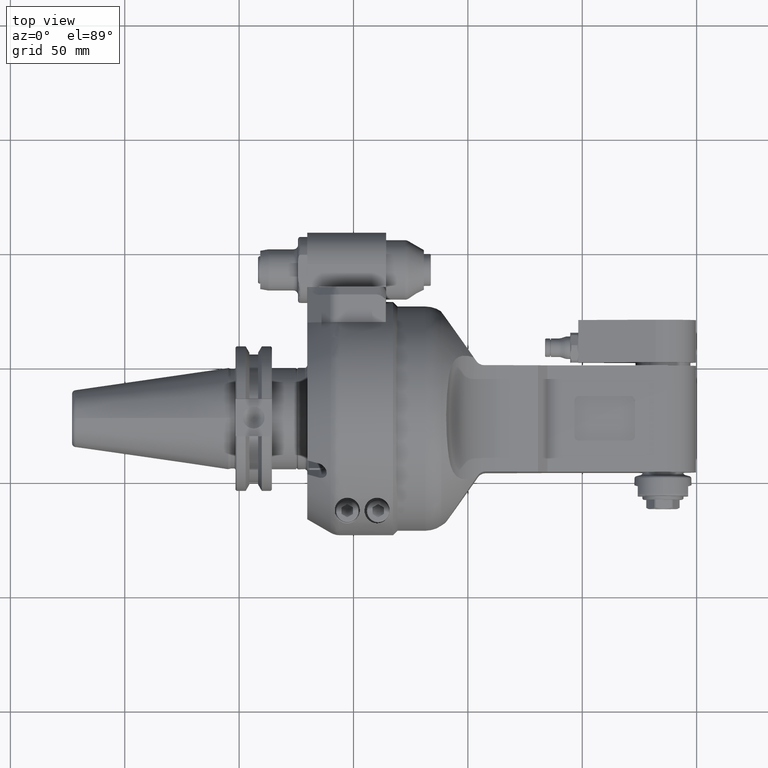
[diagram: clean part render]
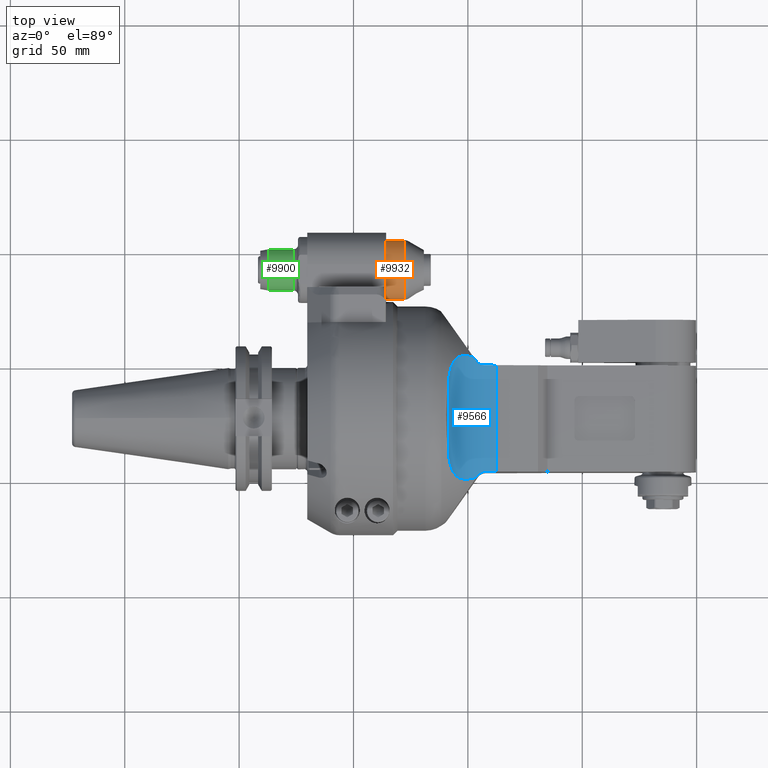
[diagram: same view with three faces highlighted in distinct colors, each labeled with its STEP entity id]
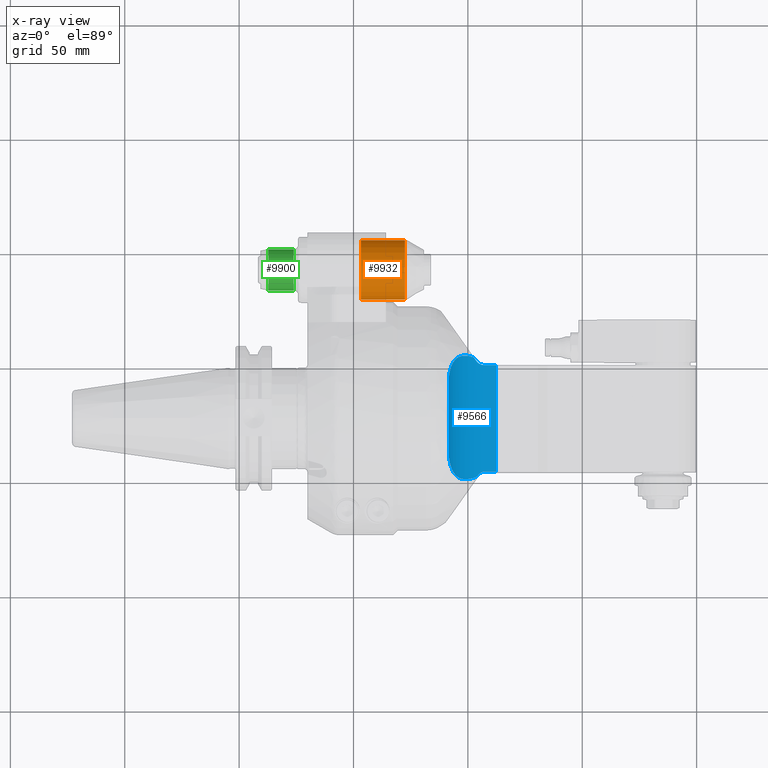
[diagram: x-ray of the same camera — body ghosted, the three highlighted faces saturated]
A machine part, top view with three faces highlighted in distinct colors.
The next image is the same camera in x-ray (body ghosted, the three faces saturated) — at least one of them is partly hidden behind the body in this view.
Their STEP definitions:

[orange] entity #9932 — the highlighted cylindrical surface (bore or boss wall) has radius 13 mm, axis along (1, 0, 0).
#501=CYLINDRICAL_SURFACE('',#10832,13.);
#945=CIRCLE('',#10831,13.);
#946=CIRCLE('',#10833,13.);
#947=CIRCLE('',#10834,13.);
#1453=FACE_OUTER_BOUND('',#2061,.T.);
#2061=EDGE_LOOP('',(#8587,#8588,#8589,#8590,#8591));
#2899=LINE('',#16931,#3709);
#3709=VECTOR('',#13167,13.);
#4670=VERTEX_POINT('',#16924);
#4671=VERTEX_POINT('',#16927);
#4672=VERTEX_POINT('',#16928);
#6011=EDGE_CURVE('',#4670,#4670,#945,.T.);
#6012=EDGE_CURVE('',#4671,#4672,#946,.T.);
#6013=EDGE_CURVE('',#4672,#4671,#947,.T.);
#6014=EDGE_CURVE('',#4672,#4670,#2899,.T.);
#8587=ORIENTED_EDGE('',*,*,#6012,.F.);
#8588=ORIENTED_EDGE('',*,*,#6013,.F.);
#8589=ORIENTED_EDGE('',*,*,#6014,.T.);
#8590=ORIENTED_EDGE('',*,*,#6011,.F.);
#8591=ORIENTED_EDGE('',*,*,#6014,.F.);
#9932=ADVANCED_FACE('',(#1453),#501,.T.);
#10831=AXIS2_PLACEMENT_3D('',#16925,#13159,#13160);
#10832=AXIS2_PLACEMENT_3D('',#16926,#13161,#13162);
#10833=AXIS2_PLACEMENT_3D('',#16929,#13163,#13164);
#10834=AXIS2_PLACEMENT_3D('',#16930,#13165,#13166);
#13159=DIRECTION('center_axis',(-1.,0.,0.));
#13160=DIRECTION('ref_axis',(0.,1.,0.));
#13161=DIRECTION('center_axis',(1.,0.,0.));
#13162=DIRECTION('ref_axis',(0.,1.,0.));
#13163=DIRECTION('center_axis',(1.,0.,0.));
#13164=DIRECTION('ref_axis',(0.,-1.,0.));
#13165=DIRECTION('center_axis',(1.,0.,0.));
#13166=DIRECTION('ref_axis',(0.,-1.,0.));
#13167=DIRECTION('',(-1.,0.,0.));
#16924=CARTESIAN_POINT('',(-28.,52.,-1.59204083889156E-15));
#16925=CARTESIAN_POINT('Origin',(-28.,65.,0.));
#16926=CARTESIAN_POINT('Origin',(-17.,65.,0.));
#16927=CARTESIAN_POINT('',(-8.803847577293,78.,0.));
#16928=CARTESIAN_POINT('',(-8.803847577293,52.,-1.59204083889156E-15));
#16929=CARTESIAN_POINT('Origin',(-8.803847577293,65.,0.));
#16930=CARTESIAN_POINT('Origin',(-8.803847577293,65.,0.));
#16931=CARTESIAN_POINT('',(-17.,52.,-1.59204083889156E-15));

[blue] entity #9566 — the highlighted cylindrical surface (partial cylindrical patch) has radius 26 mm, axis along (-0, 1, 0).
#280=ELLIPSE('',#10158,78.9687929856143,46.6795432910885);
#290=B_SPLINE_CURVE_WITH_KNOTS('',3,(#13960,#13961,#13962,#13963,#13964,
#13965,#13966,#13967),.UNSPECIFIED.,.F.,.F.,(4,2,2,4),(-1.01926799667052,
-0.956010714104506,-0.787581854621471,-0.619152995138435),.UNSPECIFIED.);
#291=B_SPLINE_CURVE_WITH_KNOTS('',3,(#13974,#13975,#13976,#13977,#13978,
#13979,#13980,#13981,#13982,#13983,#13984,#13985,#13986,#13987,#13988,#13989),
 .UNSPECIFIED.,.F.,.F.,(4,2,2,2,2,2,2,4),(-11.3679576426964,-11.1087200709386,
-10.8090962085518,-10.509472346165,-10.1518591663311,-9.79424598649715,
-9.20006866240719,-9.17254142138074),.UNSPECIFIED.);
#292=B_SPLINE_CURVE_WITH_KNOTS('',3,(#13993,#13994,#13995,#13996,#13997,
#13998,#13999,#14000,#14001,#14002,#14003,#14004,#14005,#14006,#14007,#14008),
 .UNSPECIFIED.,.F.,.F.,(4,2,2,2,2,2,2,4),(-5.66253195905696,-5.63500471786744,
-5.04082739377748,-4.68321421394354,-4.3256010341096,-4.02597717172281,
-3.72635330933601,-3.29785451749121),.UNSPECIFIED.);
#293=B_SPLINE_CURVE_WITH_KNOTS('',3,(#14012,#14013,#14014,#14015,#14016,
#14017,#14018,#14019),.UNSPECIFIED.,.F.,.F.,(4,2,2,4),(-0.634143604519555,
-0.468183361072118,-0.302223117624681,-0.23826972836719),.UNSPECIFIED.);
#392=CYLINDRICAL_SURFACE('',#10157,26.);
#642=CIRCLE('',#10152,26.);
#646=CIRCLE('',#10159,61.1215133780725);
#647=CIRCLE('',#10160,26.);
#1087=FACE_OUTER_BOUND('',#1615,.T.);
#1615=EDGE_LOOP('',(#6413,#6414,#6415,#6416,#6417,#6418,#6419,#6420,#6421,
#6422));
#2259=LINE('',#13970,#3069);
#2260=LINE('',#13991,#3070);
#3069=VECTOR('',#11173,46.5);
#3070=VECTOR('',#11176,35.24839661165);
#3871=VERTEX_POINT('',#13921);
#3873=VERTEX_POINT('',#13924);
#3885=VERTEX_POINT('',#13958);
#3886=VERTEX_POINT('',#13969);
#3887=VERTEX_POINT('',#13971);
#3888=VERTEX_POINT('',#13973);
#3889=VERTEX_POINT('',#13990);
#3890=VERTEX_POINT('',#13992);
#3891=VERTEX_POINT('',#14009);
#3892=VERTEX_POINT('',#14011);
#4922=EDGE_CURVE('',#3871,#3873,#642,.T.);
#4937=EDGE_CURVE('',#3885,#3871,#290,.T.);
#4938=EDGE_CURVE('',#3886,#3873,#2259,.T.);
#4939=EDGE_CURVE('',#3885,#3887,#280,.T.);
#4940=EDGE_CURVE('',#3887,#3888,#291,.T.);
#4941=EDGE_CURVE('',#3888,#3889,#2260,.T.);
#4942=EDGE_CURVE('',#3889,#3890,#292,.T.);
#4943=EDGE_CURVE('',#3890,#3891,#646,.T.);
#4944=EDGE_CURVE('',#3892,#3891,#293,.T.);
#4945=EDGE_CURVE('',#3886,#3892,#647,.T.);
#6413=ORIENTED_EDGE('',*,*,#4938,.T.);
#6414=ORIENTED_EDGE('',*,*,#4922,.F.);
#6415=ORIENTED_EDGE('',*,*,#4937,.F.);
#6416=ORIENTED_EDGE('',*,*,#4939,.T.);
#6417=ORIENTED_EDGE('',*,*,#4940,.T.);
#6418=ORIENTED_EDGE('',*,*,#4941,.T.);
#6419=ORIENTED_EDGE('',*,*,#4942,.T.);
#6420=ORIENTED_EDGE('',*,*,#4943,.T.);
#6421=ORIENTED_EDGE('',*,*,#4944,.F.);
#6422=ORIENTED_EDGE('',*,*,#4945,.F.);
#9566=ADVANCED_FACE('',(#1087),#392,.F.);
#10152=AXIS2_PLACEMENT_3D('',#13925,#11151,#11152);
#10157=AXIS2_PLACEMENT_3D('',#13968,#11171,#11172);
#10158=AXIS2_PLACEMENT_3D('',#13972,#11174,#11175);
#10159=AXIS2_PLACEMENT_3D('',#14010,#11177,#11178);
#10160=AXIS2_PLACEMENT_3D('',#14020,#11179,#11180);
#11151=DIRECTION('center_axis',(0.,-1.,0.));
#11152=DIRECTION('ref_axis',(-0.377730003632286,0.,-0.925915786859665));
#11171=DIRECTION('center_axis',(0.,1.,0.));
#11172=DIRECTION('ref_axis',(1.,0.,0.));
#11173=DIRECTION('',(0.,1.,0.));
#11174=DIRECTION('center_axis',(0.81918684404937,0.573526708363153,0.000171261674334055));
#11175=DIRECTION('ref_axis',(0.540125021552703,-0.771578478112781,0.336052991663303));
#11176=DIRECTION('',(-6.191174958633E-12,-1.,2.310507871532E-11));
#11177=DIRECTION('center_axis',(0.819155309113549,-0.573571773390025,1.7925061385749E-5));
#11178=DIRECTION('ref_axis',(-0.170381302522093,-0.243362506342258,-0.954853340706147));
#11179=DIRECTION('center_axis',(0.,1.,0.));
#11180=DIRECTION('ref_axis',(-0.173648177667307,0.,-0.984807753012142));
#13921=CARTESIAN_POINT('',(54.73216465251,23.,23.50722286254));
#13924=CARTESIAN_POINT('',(60.03829212761,23.,21.97603174258));
#13925=CARTESIAN_POINT('Origin',(64.55314474696,23.,47.5810333209));
#13958=CARTESIAN_POINT('',(51.45555647536,24.7056942546,25.12099811461));
#13960=CARTESIAN_POINT('Ctrl Pts',(51.4555564753612,24.7056942545999,25.1209981146124));
#13961=CARTESIAN_POINT('Ctrl Pts',(51.5753408439917,24.5346244473009,25.0511457600953));
#13962=CARTESIAN_POINT('Ctrl Pts',(51.7059494581249,24.3768949906602,24.9763026179841));
#13963=CARTESIAN_POINT('Ctrl Pts',(52.2037708472152,23.8565480079489,24.6973038563181));
#13964=CARTESIAN_POINT('Ctrl Pts',(52.6603225400344,23.5351211073212,24.4537188362212));
#13965=CARTESIAN_POINT('Ctrl Pts',(53.6643756978693,23.1067054262353,23.9643738640769));
#13966=CARTESIAN_POINT('Ctrl Pts',(54.2123281859922,23.,23.7192916415636));
#13967=CARTESIAN_POINT('Ctrl Pts',(54.73216465252,23.,23.5072228625489));
#13968=CARTESIAN_POINT('Origin',(64.55314474696,0.,47.5810333209));
#13969=CARTESIAN_POINT('',(60.03829212761,-23.5,21.97603174258));
#13970=CARTESIAN_POINT('',(60.03829212761,-23.5,21.97603174258));
#13971=CARTESIAN_POINT('',(50.32663557925,26.31796038215,25.81853261668));
#13972=CARTESIAN_POINT('Origin',(80.1123565480823,-16.2399727391193,72.7673880460231));
#13973=CARTESIAN_POINT('',(39.43907326344,17.62419830655,40.85173814823));
#13974=CARTESIAN_POINT('Ctrl Pts',(50.3266355792508,26.3179603821482,25.8185326166821));
#13975=CARTESIAN_POINT('Ctrl Pts',(49.5931269071222,26.5670459568276,26.2980394523377));
#13976=CARTESIAN_POINT('Ctrl Pts',(48.8652262292801,26.7602403925626,26.8275770681717));
#13977=CARTESIAN_POINT('Ctrl Pts',(47.3527718095707,27.0206715689457,28.055709602424));
#13978=CARTESIAN_POINT('Ctrl Pts',(46.5754988807068,27.0631655307251,28.769610398774));
#13979=CARTESIAN_POINT('Ctrl Pts',(45.1408364903172,26.928828024518,30.2539541892921));
#13980=CARTESIAN_POINT('Ctrl Pts',(44.4833891250785,26.7515201873074,31.0242980645363));
#13981=CARTESIAN_POINT('Ctrl Pts',(43.2048615199485,26.1431500897146,32.6960679135348));
#13982=CARTESIAN_POINT('Ctrl Pts',(42.546578790386,25.6262824137681,33.6912935538658));
#13983=CARTESIAN_POINT('Ctrl Pts',(41.4504452654249,24.2857621006101,35.6027586369876));
#13984=CARTESIAN_POINT('Ctrl Pts',(41.0087793176665,23.4640109036862,36.5181412902263));
#13985=CARTESIAN_POINT('Ctrl Pts',(40.1128481386325,21.2432134325854,38.5992416820879));
#13986=CARTESIAN_POINT('Ctrl Pts',(39.7430630256033,19.6305258381362,39.7397040921012));
#13987=CARTESIAN_POINT('Ctrl Pts',(39.4631801555046,17.7882881650128,40.762244558247));
#13988=CARTESIAN_POINT('Ctrl Pts',(39.4510158799108,17.7063995071778,40.8071676968061));
#13989=CARTESIAN_POINT('Ctrl Pts',(39.4390732634466,17.6241983065466,40.8517381482256));
#13990=CARTESIAN_POINT('',(39.43907326322,-17.6241983051,40.85173814904));
#13991=CARTESIAN_POINT('',(39.43907326344,17.62419830655,40.85173814823));
#13992=CARTESIAN_POINT('',(51.76423686831,-25.76485296668,24.94381098088));
#13993=CARTESIAN_POINT('Ctrl Pts',(39.4390732632344,-17.6241983050858,40.8517381490176));
#13994=CARTESIAN_POINT('Ctrl Pts',(39.4510158797666,-17.7063995062076,40.8071676973384));
#13995=CARTESIAN_POINT('Ctrl Pts',(39.4631801554312,-17.7882881645296,40.7622445585152));
#13996=CARTESIAN_POINT('Ctrl Pts',(39.7430630256034,-19.6305258381362,39.7397040921012));
#13997=CARTESIAN_POINT('Ctrl Pts',(40.1128481386325,-21.2432134325854,38.5992416820879));
#13998=CARTESIAN_POINT('Ctrl Pts',(41.0087793176665,-23.4640109036862,36.5181412902263));
#13999=CARTESIAN_POINT('Ctrl Pts',(41.4504452654249,-24.2857621006101,35.6027586369876));
#14000=CARTESIAN_POINT('Ctrl Pts',(42.546578790386,-25.6262824137681,33.6912935538658));
#14001=CARTESIAN_POINT('Ctrl Pts',(43.2048615199485,-26.1431500897146,32.6960679135348));
#14002=CARTESIAN_POINT('Ctrl Pts',(44.4833891250785,-26.7515201873074,31.0242980645363));
#14003=CARTESIAN_POINT('Ctrl Pts',(45.1408364903172,-26.928828024518,30.2539541892921));
#14004=CARTESIAN_POINT('Ctrl Pts',(46.5754988807068,-27.0631655307252,28.769610398774));
#14005=CARTESIAN_POINT('Ctrl Pts',(47.3527718095707,-27.0206715689457,28.055709602424));
#14006=CARTESIAN_POINT('Ctrl Pts',(49.3233002074889,-26.6813641345671,26.4556150781762));
#14007=CARTESIAN_POINT('Ctrl Pts',(50.5563175668249,-26.2814142669372,25.6262254767731));
#14008=CARTESIAN_POINT('Ctrl Pts',(51.7642368683103,-25.764852966678,24.943810980882));
#14009=CARTESIAN_POINT('',(52.15576401351,-25.20569425468,24.72704130744));
#14010=CARTESIAN_POINT('Origin',(62.5697270749971,-10.3310095675574,83.0891225455336));
#14011=CARTESIAN_POINT('',(55.43237219073,-23.5,23.23331252454));
#14012=CARTESIAN_POINT('Ctrl Pts',(55.43237219073,-23.5,23.2333125245396));
#14013=CARTESIAN_POINT('Ctrl Pts',(54.9143268483256,-23.5,23.4273747852909));
#14014=CARTESIAN_POINT('Ctrl Pts',(54.3678108661031,-23.6060548904747,23.6527927473859));
#14015=CARTESIAN_POINT('Ctrl Pts',(53.3663020266744,-24.0319381493228,24.1043156376075));
#14016=CARTESIAN_POINT('Ctrl Pts',(52.9108917322444,-24.3515229478473,24.3297240020591));
#14017=CARTESIAN_POINT('Ctrl Pts',(52.4110485023615,-24.8709674705775,24.5898596612128));
#14018=CARTESIAN_POINT('Ctrl Pts',(52.2777133018123,-25.0315326216656,24.6608886739893));
#14019=CARTESIAN_POINT('Ctrl Pts',(52.1557640135181,-25.2056942546756,24.7270413074665));
#14020=CARTESIAN_POINT('Origin',(64.55314474696,-23.5,47.5810333209));

[green] entity #9900 — the highlighted cylindrical surface (bore or boss wall) has radius 9 mm, axis along (-1, 0, 0).
#490=CYLINDRICAL_SURFACE('',#10783,9.);
#926=CIRCLE('',#10780,9.);
#927=CIRCLE('',#10781,9.);
#929=CIRCLE('',#10784,9.);
#930=CIRCLE('',#10785,9.);
#1421=FACE_OUTER_BOUND('',#2023,.T.);
#2023=EDGE_LOOP('',(#8447,#8448,#8449,#8450,#8451,#8452));
#2873=LINE('',#16724,#3683);
#3683=VECTOR('',#13041,9.);
#4636=VERTEX_POINT('',#16715);
#4637=VERTEX_POINT('',#16716);
#4638=VERTEX_POINT('',#16721);
#4639=VERTEX_POINT('',#16722);
#5952=EDGE_CURVE('',#4636,#4637,#926,.T.);
#5953=EDGE_CURVE('',#4637,#4636,#927,.T.);
#5955=EDGE_CURVE('',#4638,#4639,#929,.T.);
#5956=EDGE_CURVE('',#4639,#4636,#2873,.T.);
#5957=EDGE_CURVE('',#4639,#4638,#930,.T.);
#8447=ORIENTED_EDGE('',*,*,#5955,.T.);
#8448=ORIENTED_EDGE('',*,*,#5956,.T.);
#8449=ORIENTED_EDGE('',*,*,#5952,.T.);
#8450=ORIENTED_EDGE('',*,*,#5953,.T.);
#8451=ORIENTED_EDGE('',*,*,#5956,.F.);
#8452=ORIENTED_EDGE('',*,*,#5957,.T.);
#9900=ADVANCED_FACE('',(#1421),#490,.T.);
#10780=AXIS2_PLACEMENT_3D('',#16717,#13031,#13032);
#10781=AXIS2_PLACEMENT_3D('',#16718,#13033,#13034);
#10783=AXIS2_PLACEMENT_3D('',#16720,#13037,#13038);
#10784=AXIS2_PLACEMENT_3D('',#16723,#13039,#13040);
#10785=AXIS2_PLACEMENT_3D('',#16725,#13042,#13043);
#13031=DIRECTION('center_axis',(-1.,0.,0.));
#13032=DIRECTION('ref_axis',(0.,1.,0.));
#13033=DIRECTION('center_axis',(-1.,0.,0.));
#13034=DIRECTION('ref_axis',(0.,1.,0.));
#13037=DIRECTION('center_axis',(-1.,0.,0.));
#13038=DIRECTION('ref_axis',(0.,-1.,0.));
#13039=DIRECTION('center_axis',(1.,0.,0.));
#13040=DIRECTION('ref_axis',(0.,1.,0.));
#13041=DIRECTION('',(1.,0.,0.));
#13042=DIRECTION('center_axis',(1.,0.,0.));
#13043=DIRECTION('ref_axis',(0.,1.,0.));
#16715=CARTESIAN_POINT('',(-57.5,74.,0.));
#16716=CARTESIAN_POINT('',(-57.5,56.0017855668837,-0.179267999534907));
#16717=CARTESIAN_POINT('Origin',(-57.5,65.,0.));
#16718=CARTESIAN_POINT('Origin',(-57.5,65.,0.));
#16720=CARTESIAN_POINT('Origin',(-39.975,65.,0.));
#16721=CARTESIAN_POINT('',(-68.4307975707,56.,0.));
#16722=CARTESIAN_POINT('',(-68.4307975707,74.,-1.10218211923262E-15));
#16723=CARTESIAN_POINT('Origin',(-68.4307975707,65.,0.));
#16724=CARTESIAN_POINT('',(-39.975,74.,-1.10218211923262E-15));
#16725=CARTESIAN_POINT('Origin',(-68.4307975707,65.,0.));